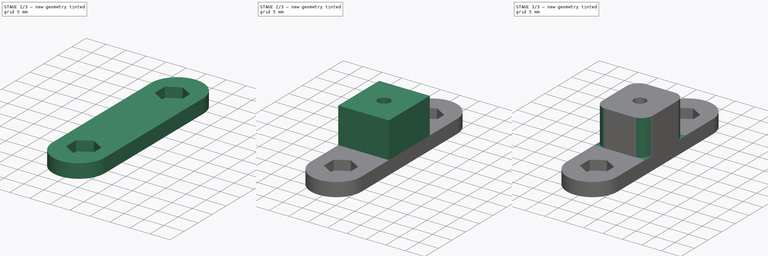
[diagram: build sequence overview — one tinted view per stage of 3, left to right]
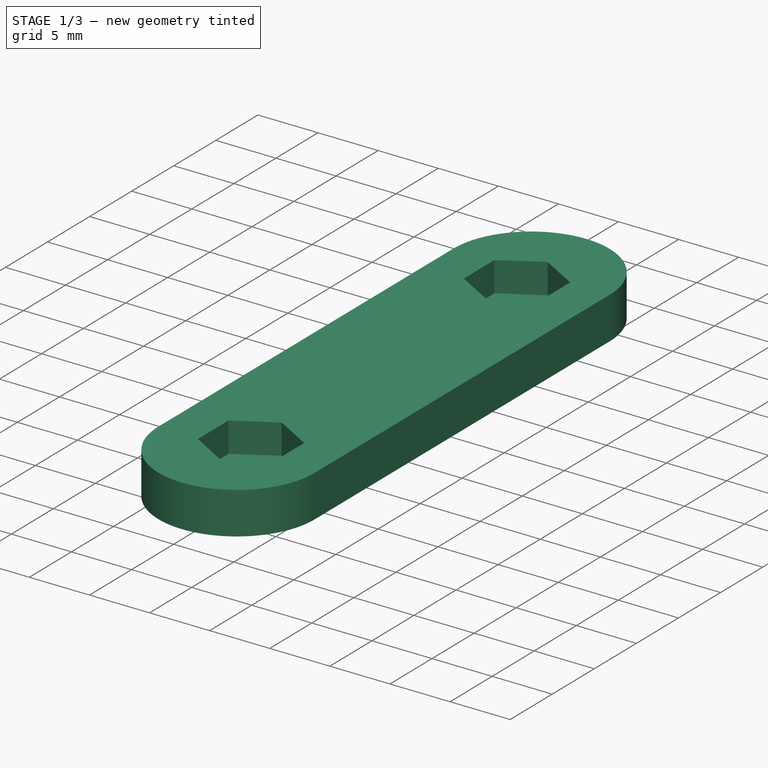
[diagram: stage 1 of 3 — iso view after this stage's code; geometry added in this stage tinted green]
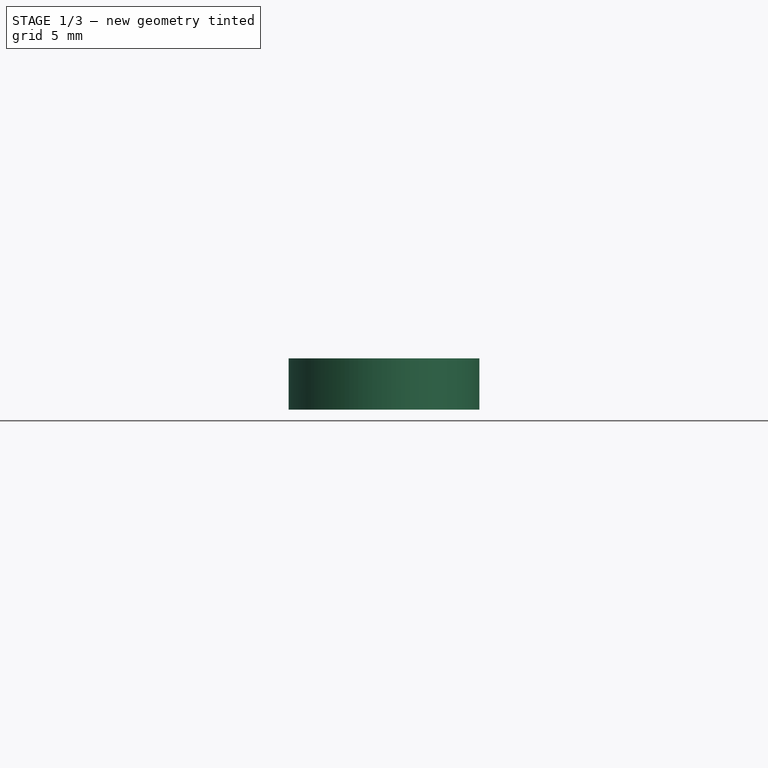
[diagram: stage 1 of 3 — front view after this stage's code; geometry added in this stage tinted green]
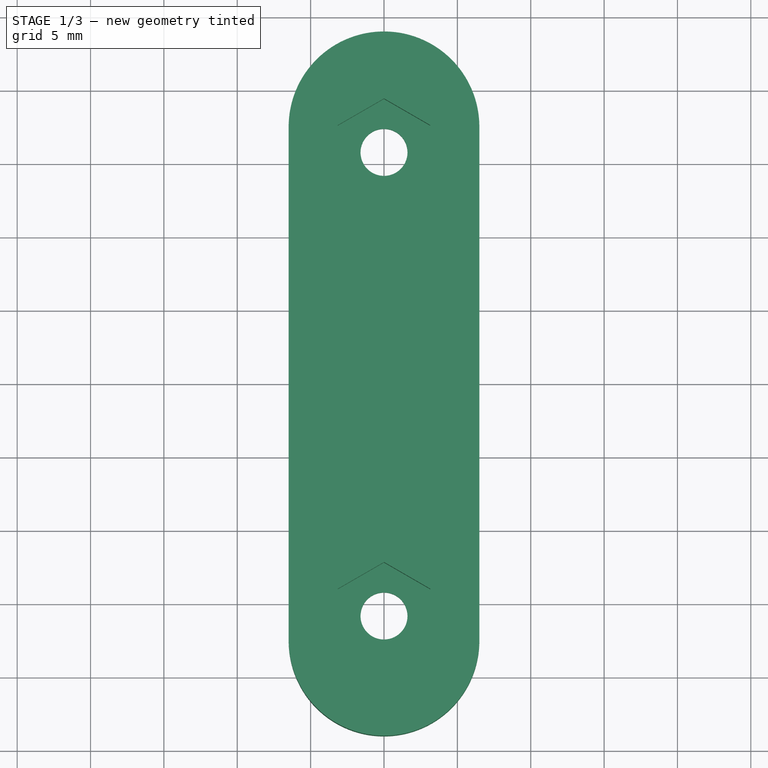
[diagram: stage 1 of 3 — top view after this stage's code; geometry added in this stage tinted green]
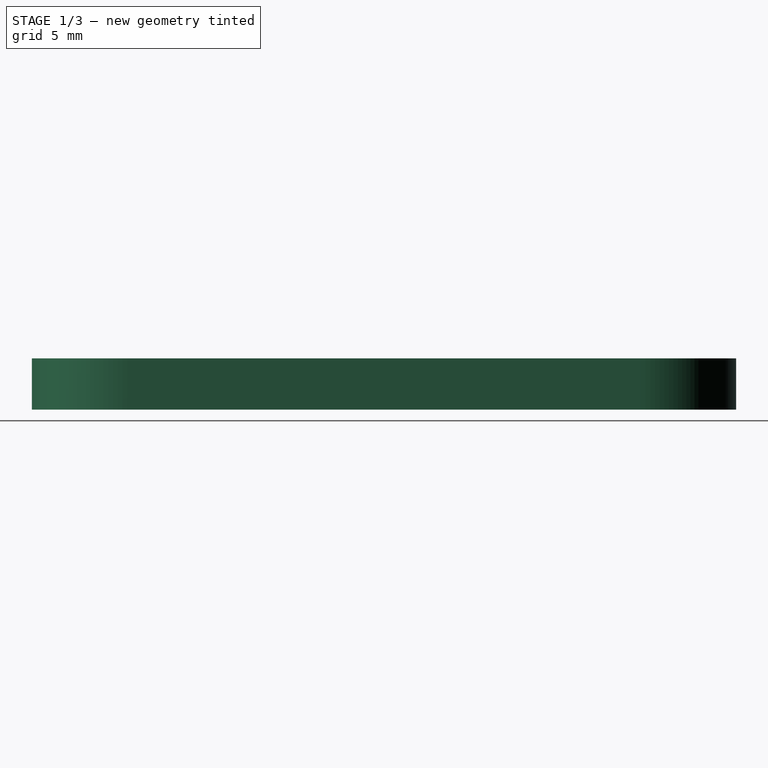
[diagram: stage 1 of 3 — right view after this stage's code; geometry added in this stage tinted green]
FCSTD DOCUMENT  (FreeCAD 0.21R33771 (Git))
Label: capa-T
License: All rights reserved
LicenseURL: https://en.wikipedia.org/wiki/All_rights_reserved
objects: Sketcher::SketchObject×3, PartDesign::Pad×2, PartDesign::Pocket×2, PartDesign::Fillet×1, PartDesign::Body×1
note: 14 computed .brp shape members not serialized (recipe doc carries the construction recipe); baked Part::Feature solids carry a one-line shape summary decoded from their .brp

FEATURE [Sketcher::SketchObject] Sketch
  FullyConstrained = true
  MapMode = 5
  Support = -> [XY_Plane]
  sketch-geometry (10):
    g0: ArcOfCircle CenterX=0 CenterY=17.5 CenterZ=0 NormalX=0 NormalY=0 NormalZ=1 AngleXU=0 Radius=6.5 StartAngle=1e-16 EndAngle=3.14159
    g1: ArcOfCircle CenterX=0 CenterY=-17.5 CenterZ=0 NormalX=0 NormalY=0 NormalZ=1 AngleXU=0 Radius=6.5 StartAngle=3.14159 EndAngle=6.28319
    g2: LineSegment StartX=-6.5 StartY=17.5 StartZ=0 EndX=-6.5 EndY=-17.5 EndZ=0
    g3: LineSegment StartX=6.5 StartY=-17.5 StartZ=0 EndX=6.5 EndY=17.5 EndZ=0
    g4: LineSegment StartX=-6.5 StartY=24 StartZ=0 EndX=6.5 EndY=24 EndZ=0
    g5: LineSegment StartX=6.5 StartY=24 StartZ=0 EndX=6.5 EndY=-24 EndZ=0
    g6: LineSegment StartX=6.5 StartY=-24 StartZ=0 EndX=-6.5 EndY=-24 EndZ=0
    g7: LineSegment StartX=-6.5 StartY=-24 StartZ=0 EndX=-6.5 EndY=24 EndZ=0
    g8: Circle CenterX=0 CenterY=15.8 CenterZ=0 NormalX=0 NormalY=0 NormalZ=1 AngleXU=0 Radius=1.6
    g9: Circle CenterX=0 CenterY=-15.8 CenterZ=0 NormalX=0 NormalY=0 NormalZ=1 AngleXU=0 Radius=1.6
  constraints (26):
    c: Tangent(g0,g2) = -1.5708
    c: Tangent(g2,g1) = -1.5708
    c: Tangent(g1,g3) = -1.5708
    c: Tangent(g3,g0) = -1.5708
    c: Equal(g0,g1)
    c: Symmetric(g1,g0,g-1)
    c: PointOnObject(g0,g-2)
    c: Coincident(g4,g5)
    c: Coincident(g5,g6)
    c: Coincident(g6,g7)
    c: Coincident(g7,g4)
    c: Horizontal(g4)
    c: Horizontal(g6)
    c: Vertical(g5)
    c: Vertical(g7)
    c: Tangent(g4,g0)
    c: Tangent(g6,g1)
    c: Tangent(g7,g0)
    c: Tangent(g5,g1)
    c: DistanceX(g4,g4) = 13
    c: DistanceY(g6,g4) = 48
    c: Equal(g9,g8)
    c: Diameter(g8) = 3.2
    c: Symmetric(g9,g8,g-1)
    c: PointOnObject(g8,g-2)
    c: DistanceY(g9,g8) = 31.6
FEATURE [PartDesign::Pad] Pad
  Direction = (0,0,1)
  Length = 3.5
  Length2 = 10
  Profile = -> Sketch
  ReferenceAxis = -> Sketch [N_Axis]
  Type = 0
FEATURE [Sketcher::SketchObject] Sketch001
  ExternalGeometry = -> [Pad]
  FullyConstrained = true
  MapMode = 5
  Placement = pos=(0,0,3.5) rot=(0,0,1;0rad)
  Support = -> [Pad]
  sketch-geometry (14):
    g0: LineSegment StartX=-1.537e-13 StartY=12.1627 StartZ=0 EndX=3.15 EndY=13.9813 EndZ=0
    g1: LineSegment StartX=3.15 StartY=13.9813 StartZ=0 EndX=3.15 EndY=17.6187 EndZ=0
    g2: LineSegment StartX=3.15 StartY=17.6187 StartZ=0 EndX=-2.909e-13 EndY=19.4373 EndZ=0
    g3: LineSegment StartX=-2.909e-13 StartY=19.4373 StartZ=0 EndX=-3.15 EndY=17.6187 EndZ=0
    g4: LineSegment StartX=-3.15 StartY=17.6187 StartZ=0 EndX=-3.15 EndY=13.9813 EndZ=0
    g5: LineSegment StartX=-3.15 StartY=13.9813 StartZ=0 EndX=-1.537e-13 EndY=12.1627 EndZ=0
    g6: Circle CenterX=0 CenterY=15.8 CenterZ=0 NormalX=0 NormalY=0 NormalZ=1 AngleXU=0 Radius=3.63731
    g7: LineSegment StartX=0 StartY=-19.4373 StartZ=0 EndX=3.15 EndY=-17.6187 EndZ=0
    g8: LineSegment StartX=3.15 StartY=-17.6187 StartZ=0 EndX=3.15 EndY=-13.9813 EndZ=0
    g9: LineSegment StartX=3.15 StartY=-13.9813 StartZ=0 EndX=0 EndY=-12.1627 EndZ=0
    g10: LineSegment StartX=0 StartY=-12.1627 StartZ=0 EndX=-3.15 EndY=-13.9813 EndZ=0
    g11: LineSegment StartX=-3.15 StartY=-13.9813 StartZ=0 EndX=-3.15 EndY=-17.6187 EndZ=0
    g12: LineSegment StartX=-3.15 StartY=-17.6187 StartZ=0 EndX=0 EndY=-19.4373 EndZ=0
    g13: Circle CenterX=0 CenterY=-15.8 CenterZ=0 NormalX=0 NormalY=0 NormalZ=1 AngleXU=0 Radius=3.63731
  constraints (32):
    c: Coincident(g0,g1)
    c: Coincident(g1,g2)
    c: Coincident(g2,g3)
    c: Coincident(g3,g4)
    c: Coincident(g4,g5)
    c: Coincident(g5,g0)
    c: Equal(g0, g1-g5) x5
    c: PointOnObject(g0,g6)
    c: PointOnObject(g1,g6)
    c: PointOnObject(g2,g6)
    c: PointOnObject(g3,g6)
    c: PointOnObject(g4,g6)
    c: PointOnObject(g5,g6)
    c: Coincident(g6,g-3)
    c: Coincident(g7,g8)
    c: Coincident(g8,g9)
    c: Coincident(g9,g10)
    c: Coincident(g10,g11)
    c: Coincident(g11,g12)
    c: Coincident(g12,g7)
    c: Equal(g7, g8-g12) x5
    c: PointOnObject(g7,g13)
    c: PointOnObject(g8,g13)
    c: PointOnObject(g9,g13)
    c: PointOnObject(g10,g13)
    c: PointOnObject(g11,g13)
    c: PointOnObject(g12,g13)
    c: Coincident(g13,g-4)
    c: Vertical(g11)
    c: Vertical(g4)
    c: Equal(g6,g13)
    c: DistanceX(g3,g1) = 6.3
FEATURE [PartDesign::Pocket] Pocket
  BaseFeature = -> Pad
  Direction = (0,0,-1)
  Length = 2.5
  Length2 = 5
  Profile = -> Sketch001
  ReferenceAxis = -> Sketch001 [N_Axis]
  Type = 0
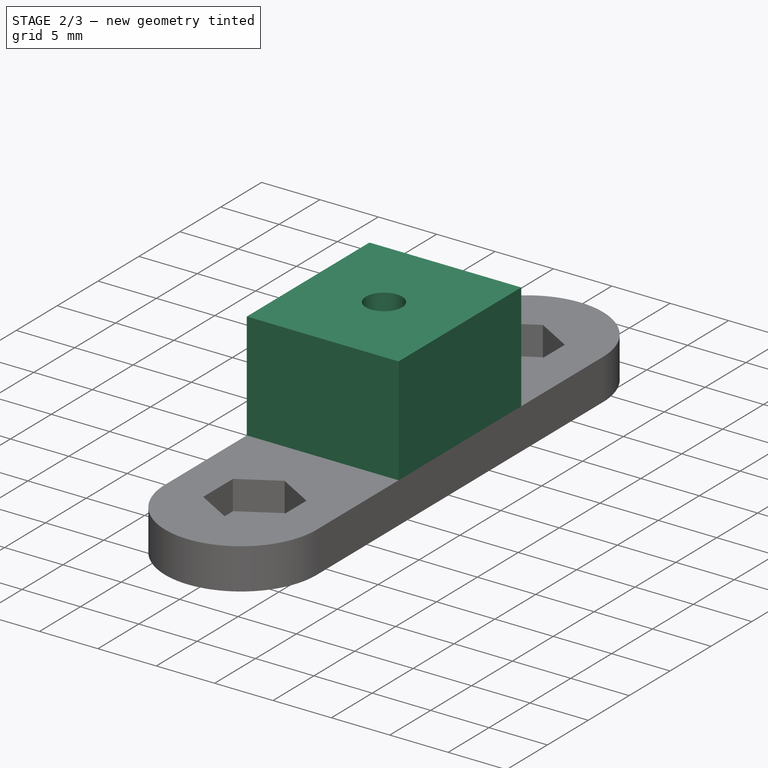
[diagram: stage 2 of 3 — iso view after this stage's code; geometry added in this stage tinted green]
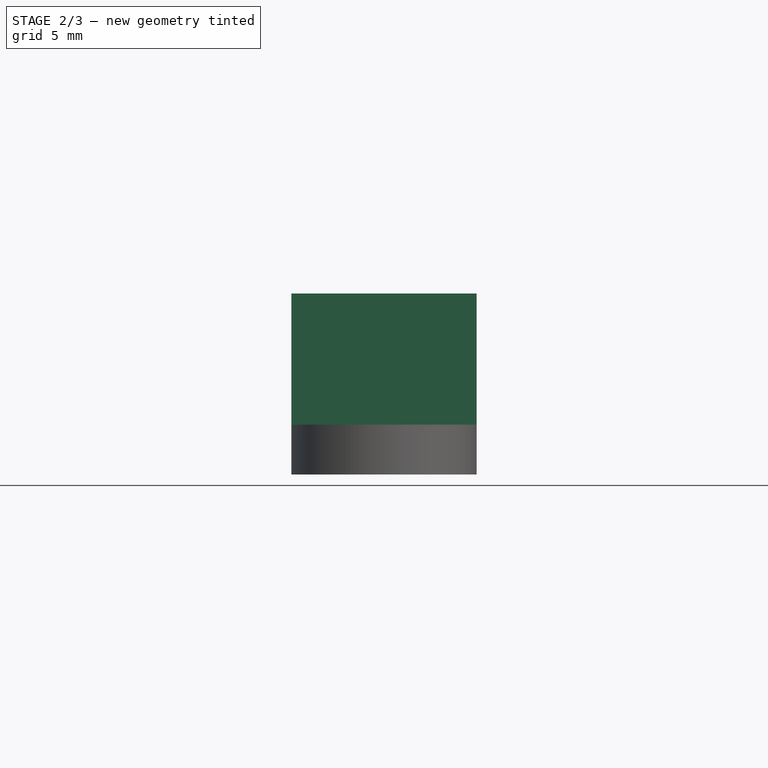
[diagram: stage 2 of 3 — front view after this stage's code; geometry added in this stage tinted green]
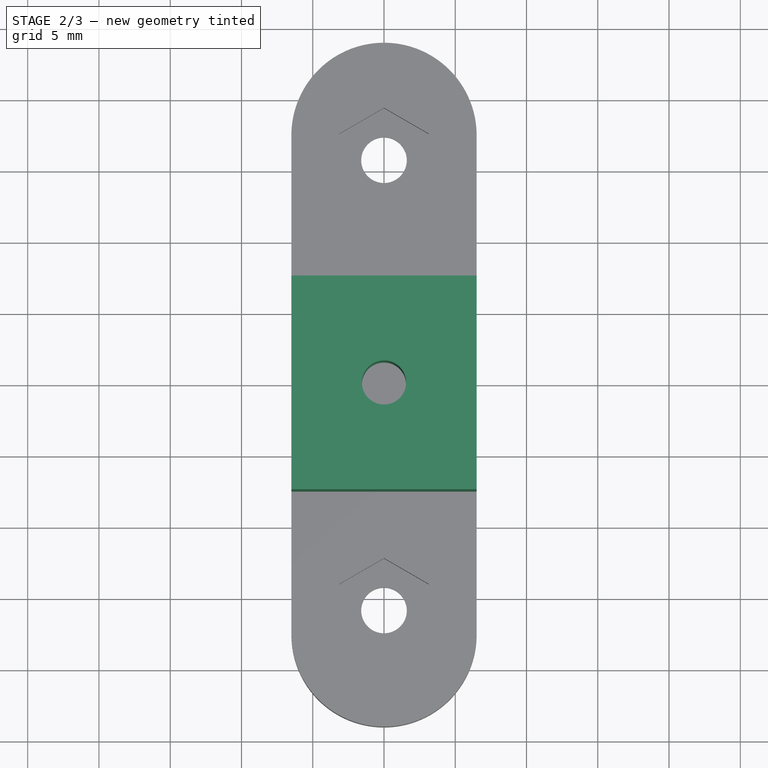
[diagram: stage 2 of 3 — top view after this stage's code; geometry added in this stage tinted green]
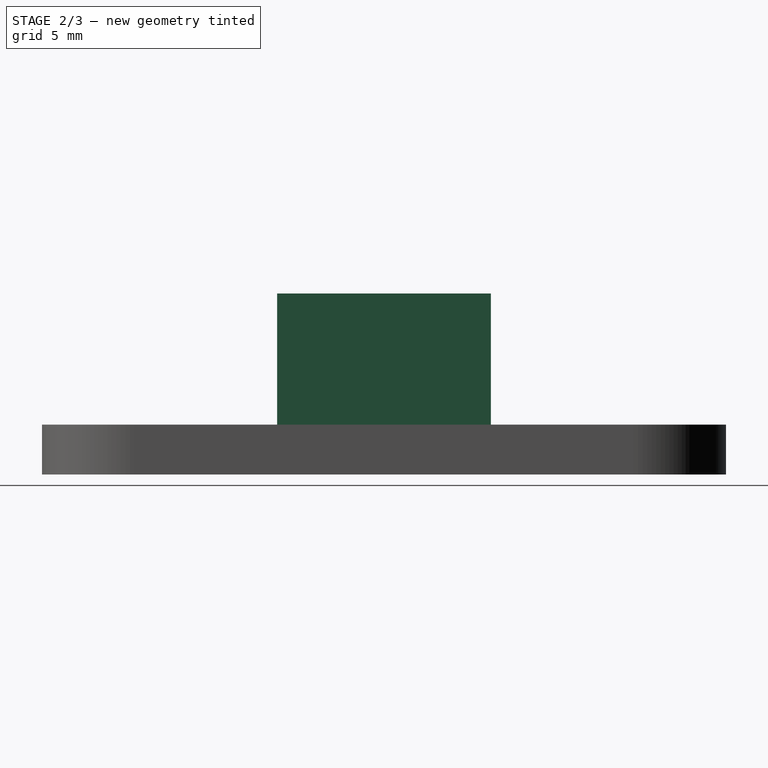
[diagram: stage 2 of 3 — right view after this stage's code; geometry added in this stage tinted green]
FEATURE [Sketcher::SketchObject] Sketch002
  ExternalGeometry = -> [Pocket]
  FullyConstrained = true
  MapMode = 5
  Placement = pos=(0,0,3.5) rot=(0,0,1;0rad)
  Support = -> [Pocket]
  sketch-geometry (5):
    g0: LineSegment StartX=-6.5 StartY=7.5 StartZ=0 EndX=6.5 EndY=7.5 EndZ=0
    g1: LineSegment StartX=6.5 StartY=7.5 StartZ=0 EndX=6.5 EndY=-7.5 EndZ=0
    g2: LineSegment StartX=6.5 StartY=-7.5 StartZ=0 EndX=-6.5 EndY=-7.5 EndZ=0
    g3: LineSegment StartX=-6.5 StartY=-7.5 StartZ=0 EndX=-6.5 EndY=7.5 EndZ=0
    g4: Circle CenterX=0 CenterY=0 CenterZ=0 NormalX=0 NormalY=0 NormalZ=1 AngleXU=0 Radius=1.55
  constraints (13):
    c: Coincident(g0,g1)
    c: Coincident(g1,g2)
    c: Coincident(g2,g3)
    c: Coincident(g3,g0)
    c: Horizontal(g0)
    c: Horizontal(g2)
    c: Vertical(g1)
    c: PointOnObject(g1,g-4)
    c: PointOnObject(g0,g-3)
    c: Symmetric(g0,g2,g-1)
    c: DistanceY(g3,g3) = 15
    c: Coincident(g4,g-1)
    c: Diameter(g4) = 3.1
FEATURE [PartDesign::Pad] Pad001
  BaseFeature = -> Pocket
  Direction = (0,0,1)
  Length = 9.2
  Length2 = 10
  Profile = -> Sketch002
  ReferenceAxis = -> Sketch002 [N_Axis]
  Type = 0
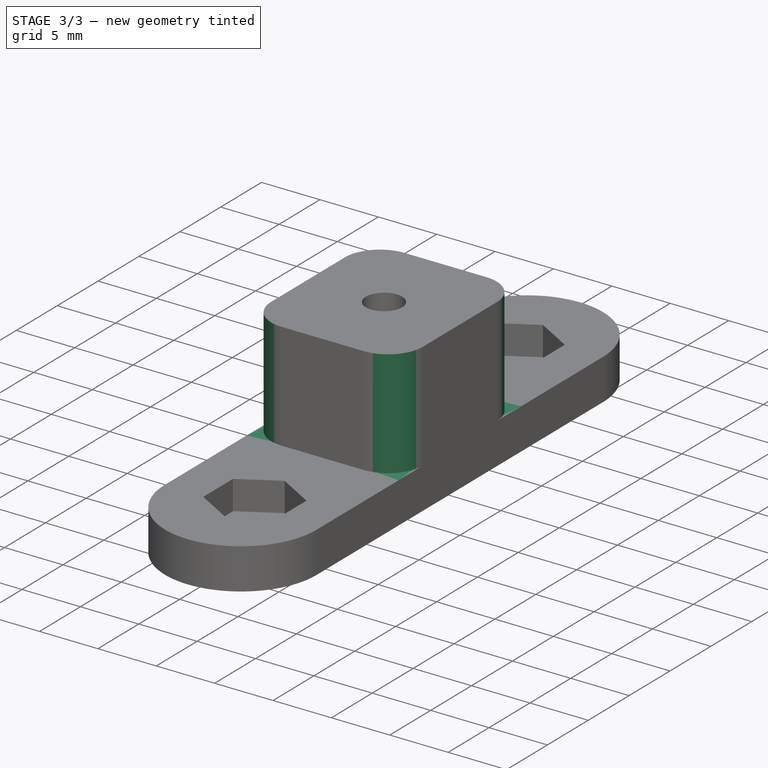
[diagram: stage 3 of 3 — iso view after this stage's code; geometry added in this stage tinted green]
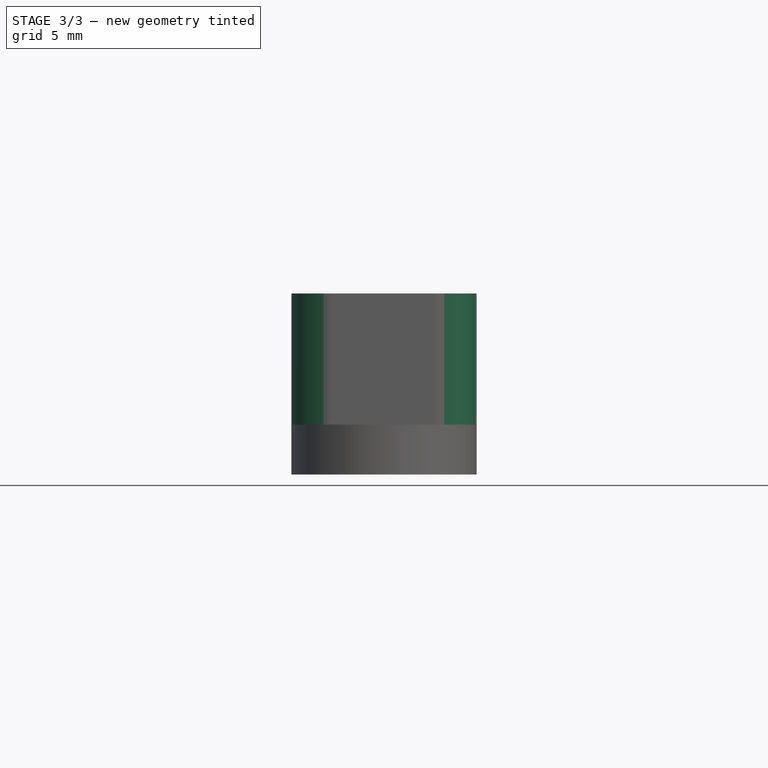
[diagram: stage 3 of 3 — front view after this stage's code; geometry added in this stage tinted green]
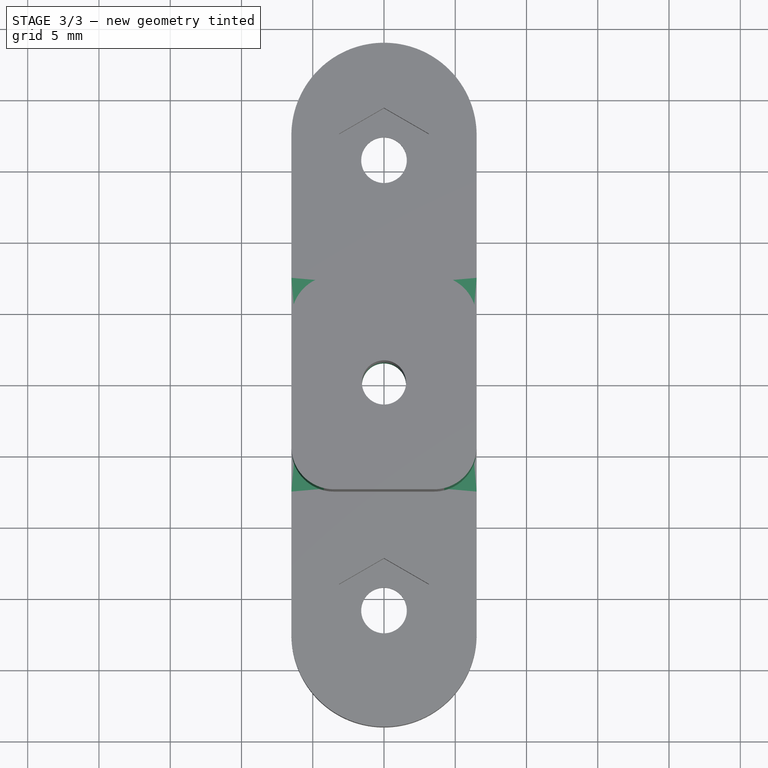
[diagram: stage 3 of 3 — top view after this stage's code; geometry added in this stage tinted green]
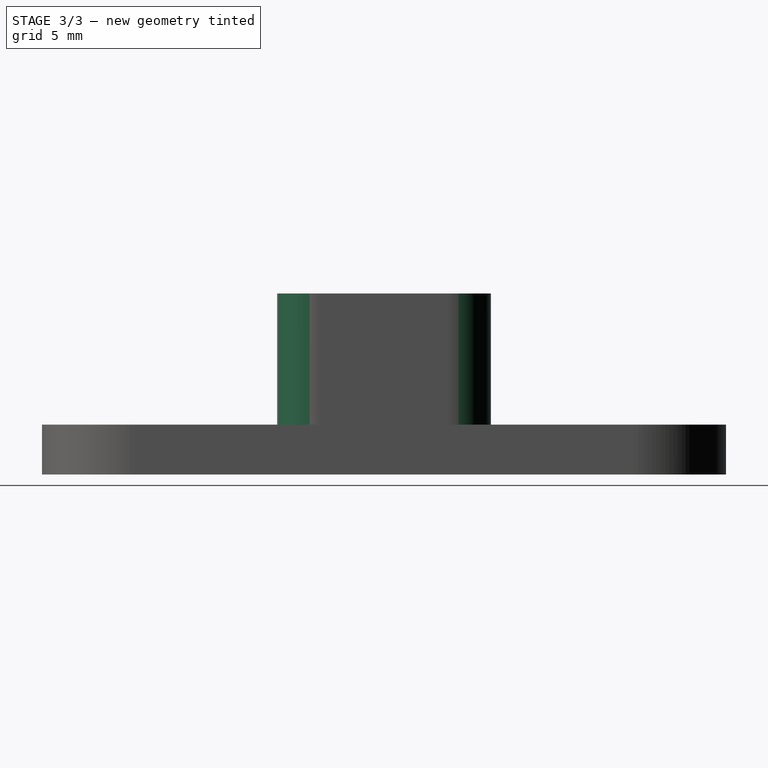
[diagram: stage 3 of 3 — right view after this stage's code; geometry added in this stage tinted green]
FEATURE [PartDesign::Fillet] Fillet
  Base = -> Pad001 [Edge37,Edge33,Edge36,Edge34]
  BaseFeature = -> Pad001
  Radius = 3
  SupportTransform = false
  UseAllEdges = false
FEATURE [PartDesign::Pocket] Pocket001
  BaseFeature = -> Fillet
  Direction = (0,0,-1)
  Length = 5
  Length2 = 5
  Profile = -> Fillet [Face33]
  Type = 1
FEATURE [PartDesign::Body] Body
  Group = -> [Sketch,Pad,Sketch001,Pocket,Sketch002,Pad001,Fillet,Pocket001]
  Origin = -> Origin
  Tip = -> Pocket001
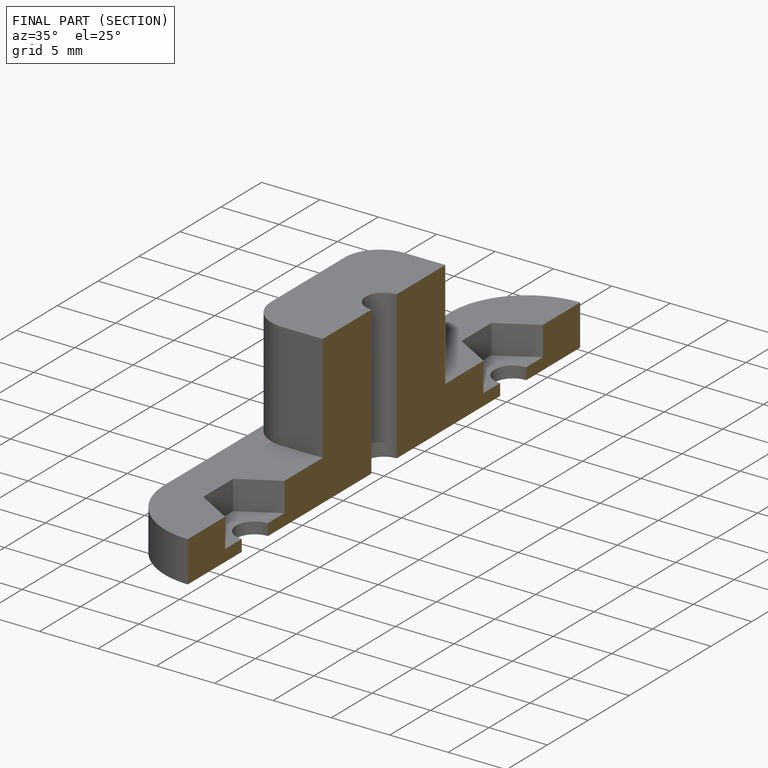
[diagram: finished part — half-section view (interior)]
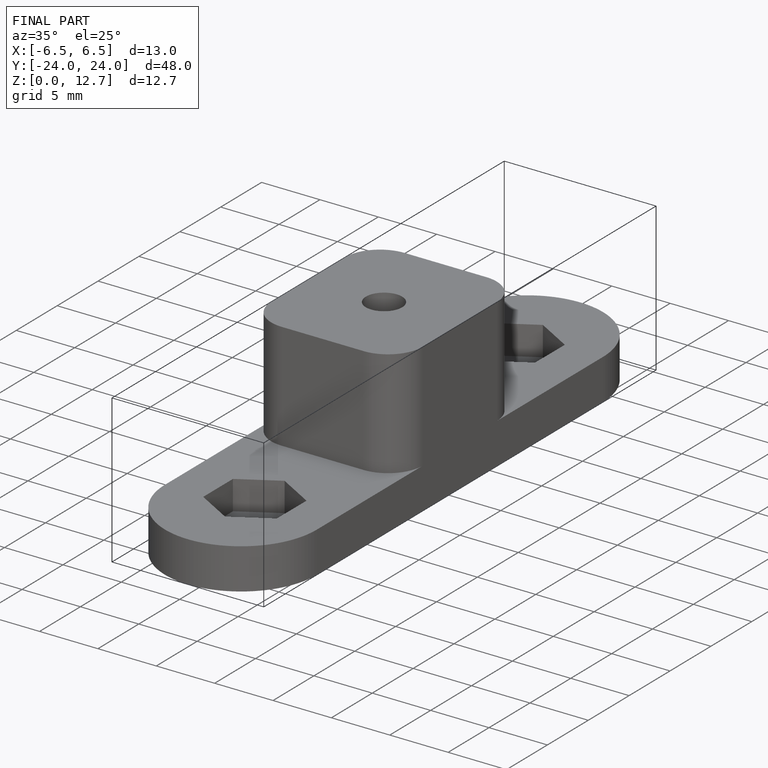
[diagram: finished part — iso view with bounding-box wireframe]
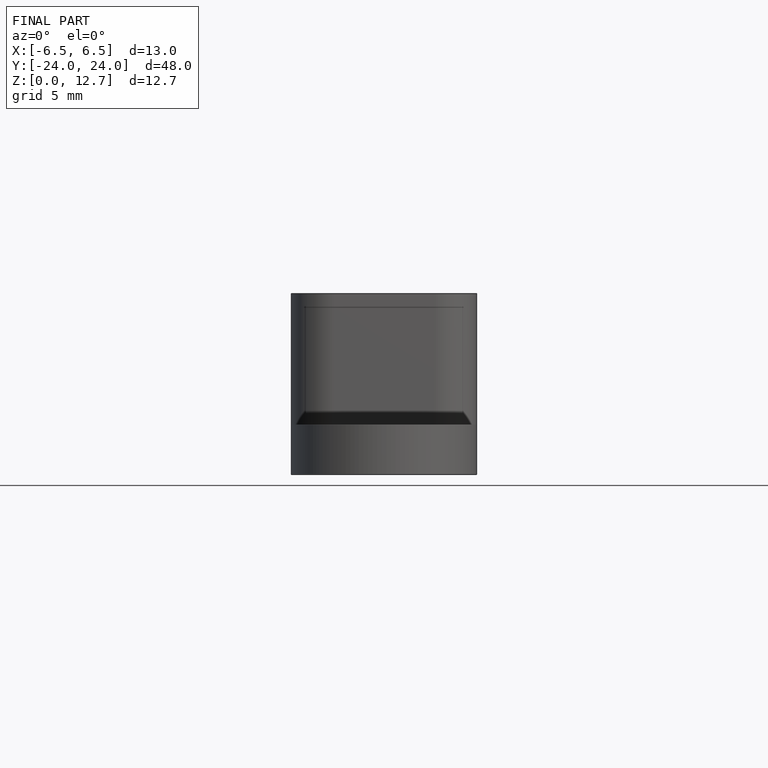
[diagram: finished part — front view with bounding-box wireframe]
